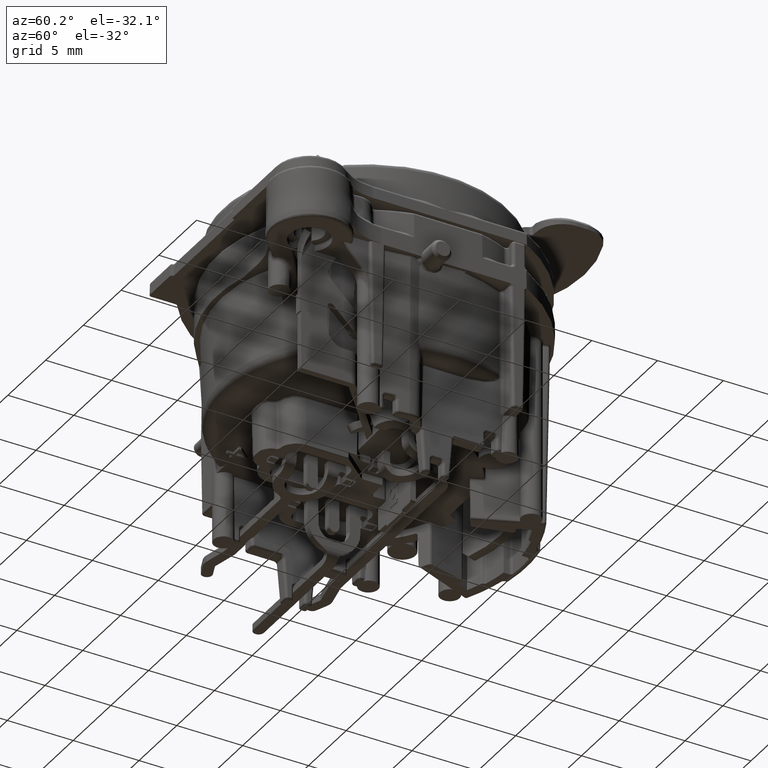
[diagram: clean part render]
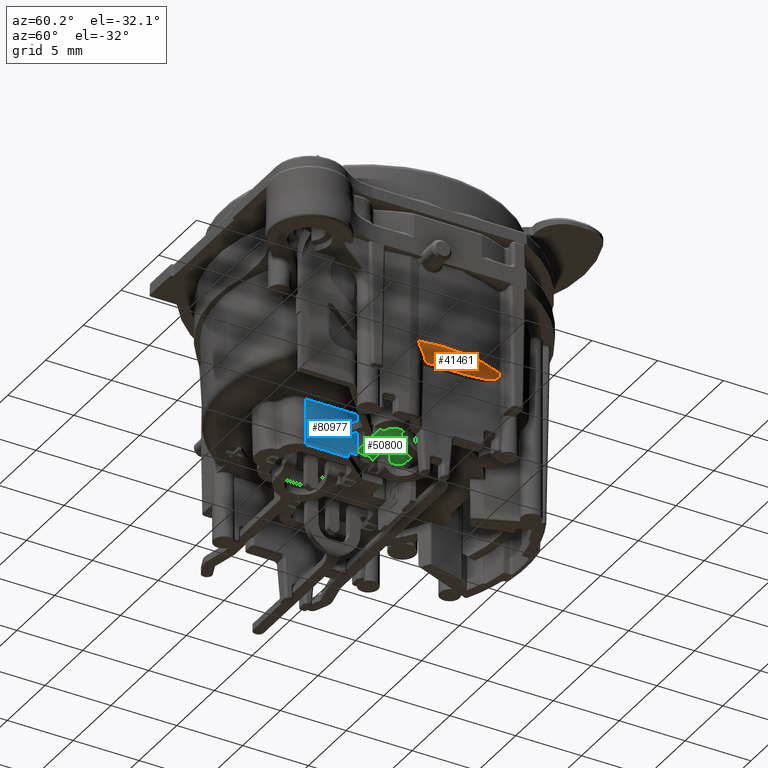
[diagram: same view with three faces highlighted in distinct colors, each labeled with its STEP entity id]
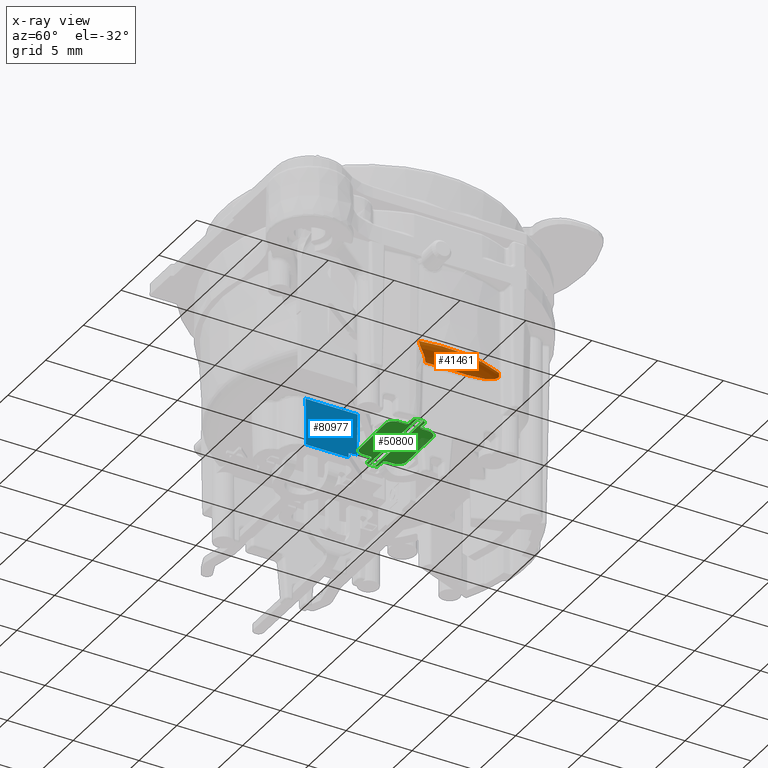
[diagram: x-ray of the same camera — body ghosted, the three highlighted faces saturated]
A machine part, auxiliary view with three faces highlighted in distinct colors.
The next image is the same camera in x-ray (body ghosted, the three faces saturated) — at least one of them is partly hidden behind the body in this view.
Their STEP definitions:

[orange] entity #41461 — the highlighted toroidal blend (fillet) surface has major radius 9.789 mm and minor (blend) radius 1 mm.
#1419=CARTESIAN_POINT('',(9.776065224672E0,4.563753741489E0,-6.367419845091E0));
#1420=CARTESIAN_POINT('',(9.774510955871E0,4.564908061056E0,-6.420035073131E0));
#1421=CARTESIAN_POINT('',(9.761981591803E0,4.567826948001E0,-6.524699402491E0));
#1422=CARTESIAN_POINT('',(9.731067829997E0,4.571888222462E0,-6.626086985737E0));
#1423=CARTESIAN_POINT('',(9.711298770870E0,4.574191011869E0,-6.675241345938E0));
#1425=CARTESIAN_POINT('',(9.845251962257E0,-1.089848148082E0,
-7.343204649385E0));
#1426=CARTESIAN_POINT('',(9.847123040133E0,-9.850765102411E-1,
-7.344337592918E0));
#1427=CARTESIAN_POINT('',(9.850735897948E0,-7.547735208790E-1,
-7.346210658427E0));
#1428=CARTESIAN_POINT('',(9.854663257832E0,-3.385945072399E-1,
-7.347698881238E0));
#1429=CARTESIAN_POINT('',(9.855594221395E0,1.246325651005E-1,
-7.347977383416E0));
#1430=CARTESIAN_POINT('',(9.852569598166E0,6.213142680680E-1,
-7.346995079945E0));
#1431=CARTESIAN_POINT('',(9.845124869789E0,1.135396497814E0,-7.343548791065E0));
#1432=CARTESIAN_POINT('',(9.833424784278E0,1.651474354900E0,-7.334940728037E0));
#1433=CARTESIAN_POINT('',(9.818516322878E0,2.145293455909E0,-7.317598215028E0));
#1434=CARTESIAN_POINT('',(9.802580298384E0,2.583154685398E0,-7.289947117297E0));
#1435=CARTESIAN_POINT('',(9.787140087453E0,2.959613828399E0,-7.252703857355E0));
#1436=CARTESIAN_POINT('',(9.772317101691E0,3.293212086755E0,-7.205094445514E0));
#1437=CARTESIAN_POINT('',(9.758390979788E0,3.589958701238E0,-7.146540259311E0));
#1438=CARTESIAN_POINT('',(9.745647631036E0,3.852548843266E0,-7.076950702022E0));
#1439=CARTESIAN_POINT('',(9.734186772814E0,4.085150085570E0,-6.995093475869E0));
#1440=CARTESIAN_POINT('',(9.724359881959E0,4.285694979276E0,-6.900962119275E0));
#1441=CARTESIAN_POINT('',(9.716456453029E0,4.452034215584E0,-6.794740427157E0));
#1442=CARTESIAN_POINT('',(9.712746483254E0,4.537902500123E0,-6.716396157488E0));
#1443=CARTESIAN_POINT('',(9.711298770870E0,4.574191011869E0,-6.675241345938E0));
#1445=CARTESIAN_POINT('',(9.984148520223E0,-1.174994108943E0,
-7.314510510761E0));
#1446=CARTESIAN_POINT('',(9.961532195861E0,-1.161206496951E0,
-7.321100769580E0));
#1447=CARTESIAN_POINT('',(9.915695032065E0,-1.133187283437E0,
-7.332511750925E0));
#1448=CARTESIAN_POINT('',(9.868862590408E0,-1.104400962097E0,
-7.340267358105E0));
#1449=CARTESIAN_POINT('',(9.845251962257E0,-1.089848148082E0,
-7.343204649385E0));
#1451=CARTESIAN_POINT('',(1.060174216054E1,-2.000617027575E0,
-6.367457787717E0));
#1452=CARTESIAN_POINT('',(1.060096672240E1,-2.000709202815E0,
-6.410146617860E0));
#1453=CARTESIAN_POINT('',(1.059608404158E1,-1.988703584094E0,
-6.497573990917E0));
#1454=CARTESIAN_POINT('',(1.057692420749E1,-1.932954769476E0,
-6.631316412931E0));
#1455=CARTESIAN_POINT('',(1.054220369102E1,-1.841738513343E0,
-6.767846155161E0));
#1456=CARTESIAN_POINT('',(1.048667363937E1,-1.721685519628E0,
-6.903029885869E0));
#1457=CARTESIAN_POINT('',(1.041451385952E1,-1.597253739848E0,
-7.019671814744E0));
#1458=CARTESIAN_POINT('',(1.033381923900E1,-1.484730301264E0,
-7.112796401194E0));
#1459=CARTESIAN_POINT('',(1.024877061495E1,-1.386932758064E0,
-7.185881442471E0));
#1460=CARTESIAN_POINT('',(1.016066421421E1,-1.302668328960E0,
-7.242848589484E0));
#1461=CARTESIAN_POINT('',(1.007227382488E1,-1.232068075732E0,
-7.285475498918E0));
#1462=CARTESIAN_POINT('',(1.001324495085E1,-1.192730352370E0,
-7.306032787875E0));
#1463=CARTESIAN_POINT('',(9.984148520223E0,-1.174994108943E0,
-7.314510510761E0));
#1465=CARTESIAN_POINT('',(0.E0,0.E0,-6.367452406437E0));
#1466=DIRECTION('',(0.E0,0.E0,1.E0));
#1467=DIRECTION('',(9.826567780826E-1,-1.854336983621E-1,0.E0));
#1468=AXIS2_PLACEMENT_3D('',#1465,#1466,#1467);
#35590=VERTEX_POINT('',#1419);
#35591=VERTEX_POINT('',#1423);
#35606=VERTEX_POINT('',#1425);
#35610=VERTEX_POINT('',#1445);
#35612=VERTEX_POINT('',#1451);
#41445=CARTESIAN_POINT('',(0.E0,0.E0,-6.35E0));
#41446=DIRECTION('',(0.E0,0.E0,1.E0));
#41447=DIRECTION('',(-5.442743601056E-1,8.389072779108E-1,0.E0));
#41448=AXIS2_PLACEMENT_3D('',#41445,#41446,#41447);
#41449=TOROIDAL_SURFACE('',#41448,9.789008009662E0,1.E0);
#41451=ORIENTED_EDGE('',*,*,#41450,.T.);
#41453=ORIENTED_EDGE('',*,*,#41452,.F.);
#41455=ORIENTED_EDGE('',*,*,#41454,.F.);
#41456=ORIENTED_EDGE('',*,*,#41438,.F.);
#41458=ORIENTED_EDGE('',*,*,#41457,.T.);
#41459=EDGE_LOOP('',(#41451,#41453,#41455,#41456,#41458));
#41460=FACE_OUTER_BOUND('',#41459,.F.);
#1424=B_SPLINE_CURVE_WITH_KNOTS('',3,(#1419,#1420,#1421,#1422,#1423),
.UNSPECIFIED.,.F.,.F.,(4,1,4),(0.E0,5.E-1,1.E0),.UNSPECIFIED.);
#1444=B_SPLINE_CURVE_WITH_KNOTS('',3,(#1425,#1426,#1427,#1428,#1429,#1430,#1431,
#1432,#1433,#1434,#1435,#1436,#1437,#1438,#1439,#1440,#1441,#1442,#1443),
.UNSPECIFIED.,.F.,.F.,(4,1,1,1,1,1,1,1,1,1,1,1,1,1,1,1,4),(0.E0,6.25E-2,1.25E-1,
1.875E-1,2.5E-1,3.125E-1,3.75E-1,4.375E-1,5.E-1,5.625E-1,6.25E-1,6.875E-1,
7.5E-1,8.125E-1,8.75E-1,9.375E-1,1.E0),.UNSPECIFIED.);
#1450=B_SPLINE_CURVE_WITH_KNOTS('',3,(#1445,#1446,#1447,#1448,#1449),
.UNSPECIFIED.,.F.,.F.,(4,1,4),(0.E0,5.E-1,1.E0),.UNSPECIFIED.);
#1464=B_SPLINE_CURVE_WITH_KNOTS('',3,(#1451,#1452,#1453,#1454,#1455,#1456,#1457,
#1458,#1459,#1460,#1461,#1462,#1463),.UNSPECIFIED.,.F.,.F.,(4,1,1,1,1,1,1,1,1,1,
4),(0.E0,1.E-1,2.E-1,3.E-1,4.E-1,5.E-1,6.E-1,7.E-1,8.E-1,9.E-1,1.E0),
.UNSPECIFIED.);
#1469=CIRCLE('',#1468,1.078885570482E1);
#41438=EDGE_CURVE('',#35612,#35610,#1464,.T.);
#41450=EDGE_CURVE('',#35590,#35591,#1424,.T.);
#41452=EDGE_CURVE('',#35606,#35591,#1444,.T.);
#41454=EDGE_CURVE('',#35610,#35606,#1450,.T.);
#41457=EDGE_CURVE('',#35612,#35590,#1469,.T.);
#41461=ADVANCED_FACE('',(#41460),#41449,.T.);

[blue] entity #80977 — the highlighted planar face has unit normal (-0.9998, 0, 0.0175).
#28956=DIRECTION('',(-1.744973283589E-2,1.743285918601E-2,-9.996957548397E-1));
#28957=VECTOR('',#28956,3.506302488273E0);
#28958=CARTESIAN_POINT('',(2.296565188823E0,-5.846708668417E0,
-7.546509446811E0));
#28959=LINE('',#28958,#28957);
#28960=CARTESIAN_POINT('',(2.235381147161E0,-5.785583790876E0,
-1.105174515952E1));
#28971=DIRECTION('',(1.196047791163E-6,9.999999999993E-1,-1.820150147743E-8));
#28972=VECTOR('',#28971,3.950317627859E0);
#28973=CARTESIAN_POINT('',(2.296565188823E0,-5.846708668417E0,
-7.546509446811E0));
#28974=LINE('',#28973,#28972);
#28975=DIRECTION('',(-1.745195043442E-2,-7.228834559801E-3,-9.998215707700E-1));
#28976=VECTOR('',#28975,3.104044333528E0);
#28977=CARTESIAN_POINT('',(2.296569913592E0,-1.896391040562E0,
-7.546509518713E0));
#28978=LINE('',#28977,#28976);
#28979=DIRECTION('',(0.E0,-1.E0,0.E0));
#28980=VECTOR('',#28979,6.355702771929E-1);
#28981=CARTESIAN_POINT('',(2.242398285737E0,-1.918829663515E0,-1.065E1));
#28982=LINE('',#28981,#28980);
#28983=DIRECTION('',(-1.744889019666E-2,2.007265202331E-2,-9.996462498662E-1));
#28984=VECTOR('',#28983,4.018874083682E-1);
#28985=CARTESIAN_POINT('',(2.242398285737E0,-2.554399940708E0,-1.065E1));
#28986=LINE('',#28985,#28984);
#28987=DIRECTION('',(-1.435305919609E-6,-9.999999999990E-1,2.504353732214E-8));
#28988=VECTOR('',#28987,3.239250796272E0);
#28989=CARTESIAN_POINT('',(2.235385796477E0,-2.546332994607E0,
-1.105174524064E1));
#28990=LINE('',#28989,#28988);
#29948=CARTESIAN_POINT('',(2.235385796477E0,-2.546332994607E0,
-1.105174524064E1));
#34252=CARTESIAN_POINT('',(2.242398285737E0,-1.918829663515E0,-1.065E1));
#34254=VERTEX_POINT('',#34252);
#34258=CARTESIAN_POINT('',(2.242398285737E0,-2.554399940708E0,-1.065E1));
#34259=VERTEX_POINT('',#34258);
#34501=VERTEX_POINT('',#28960);
#34502=VERTEX_POINT('',#29948);
#34613=CARTESIAN_POINT('',(2.296565188823E0,-5.846708668417E0,
-7.546509446811E0));
#34614=CARTESIAN_POINT('',(2.296569913592E0,-1.896391040562E0,
-7.546509518713E0));
#34615=VERTEX_POINT('',#34613);
#34616=VERTEX_POINT('',#34614);
#80960=CARTESIAN_POINT('',(2.3E0,-7.874952411393E0,-7.35E0));
#80961=DIRECTION('',(-9.998476951564E-1,0.E0,1.745240643728E-2));
#80962=DIRECTION('',(0.E0,1.E0,0.E0));
#80963=AXIS2_PLACEMENT_3D('',#80960,#80961,#80962);
#80964=PLANE('',#80963);
#80966=ORIENTED_EDGE('',*,*,#80965,.T.);
#80968=ORIENTED_EDGE('',*,*,#80967,.T.);
#80969=ORIENTED_EDGE('',*,*,#49945,.T.);
#80971=ORIENTED_EDGE('',*,*,#80970,.T.);
#80973=ORIENTED_EDGE('',*,*,#80972,.T.);
#80974=ORIENTED_EDGE('',*,*,#80952,.F.);
#80975=EDGE_LOOP('',(#80966,#80968,#80969,#80971,#80973,#80974));
#80976=FACE_OUTER_BOUND('',#80975,.F.);
#49945=EDGE_CURVE('',#34254,#34259,#28982,.T.);
#80952=EDGE_CURVE('',#34615,#34501,#28959,.T.);
#80965=EDGE_CURVE('',#34615,#34616,#28974,.T.);
#80967=EDGE_CURVE('',#34616,#34254,#28978,.T.);
#80970=EDGE_CURVE('',#34259,#34502,#28986,.T.);
#80972=EDGE_CURVE('',#34502,#34501,#28990,.T.);
#80977=ADVANCED_FACE('',(#80976),#80964,.F.);

[green] entity #50800 — the highlighted planar face has unit normal (0, 0, -1).
#9480=DIRECTION('',(-9.997939607324E-1,2.029867195376E-2,0.E0));
#9481=VECTOR('',#9480,3.424966527574E0);
#9482=CARTESIAN_POINT('',(5.475876027565E0,-1.783991973106E0,-1.01E1));
#9483=LINE('',#9482,#9481);
#29003=DIRECTION('',(-7.071067811866E-1,7.071067811865E-1,-1.089646449376E-13));
#29004=VECTOR('',#29003,1.630213947302E-2);
#29005=CARTESIAN_POINT('',(2.051615177586E0,-1.714469701110E0,-1.01E1));
#29006=LINE('',#29005,#29004);
#29019=CARTESIAN_POINT('',(2.347826303092E0,-1.152173696908E0,
-1.010011713351E1));
#29020=DIRECTION('',(-1.388709535229E-4,-1.388709535229E-4,-9.999999807149E-1));
#29021=DIRECTION('',(-4.877682006195E-1,-8.729731649689E-1,1.889674545820E-4));
#29022=AXIS2_PLACEMENT_3D('',#29019,#29020,#29021);
#29087=DIRECTION('',(0.E0,1.E0,0.E0));
#29088=VECTOR('',#29087,5.166243349062E-1);
#29089=CARTESIAN_POINT('',(1.716915266191E0,-1.152174445247E0,-1.01E1));
#29090=LINE('',#29089,#29088);
#29103=DIRECTION('',(0.E0,1.E0,0.E0));
#29104=VECTOR('',#29103,5.166243349062E-1);
#29105=CARTESIAN_POINT('',(1.716915266191E0,6.355501103410E-1,-1.01E1));
#29106=LINE('',#29105,#29104);
#29119=CARTESIAN_POINT('',(1.516953339067E0,-4.355272543177E-1,-1.01E1));
#29120=CARTESIAN_POINT('',(1.583617469592E0,-4.355272543177E-1,-1.01E1));
#29121=CARTESIAN_POINT('',(1.666447338075E0,-4.860256468839E-1,-1.01E1));
#29122=CARTESIAN_POINT('',(1.716915266191E0,-5.688859798165E-1,-1.01E1));
#29123=CARTESIAN_POINT('',(1.716915266191E0,-6.355501103410E-1,-1.01E1));
#29125=DIRECTION('',(-1.E0,0.E0,0.E0));
#29126=VECTOR('',#29125,5.010516341349E-1);
#29127=CARTESIAN_POINT('',(7.084098295068E0,-4.355272543177E-1,-1.01E1));
#29128=LINE('',#29127,#29126);
#29137=DIRECTION('',(-1.E0,0.E0,0.E0));
#29138=VECTOR('',#29137,5.010516341349E-1);
#29139=CARTESIAN_POINT('',(1.516953339067E0,-4.355272543177E-1,-1.01E1));
#29140=LINE('',#29139,#29138);
#29149=CARTESIAN_POINT('',(6.583046660933E0,-4.355272543177E-1,-1.01E1));
#29150=CARTESIAN_POINT('',(6.516382530408E0,-4.355272543177E-1,-1.01E1));
#29151=CARTESIAN_POINT('',(6.433552661925E0,-4.860256468839E-1,-1.01E1));
#29152=CARTESIAN_POINT('',(6.383084733809E0,-5.688859798165E-1,-1.01E1));
#29153=CARTESIAN_POINT('',(6.383084733809E0,-6.355501103410E-1,-1.01E1));
#29155=DIRECTION('',(0.E0,-1.E0,0.E0));
#29156=VECTOR('',#29155,5.166243349062E-1);
#29157=CARTESIAN_POINT('',(6.383084733809E0,1.152174445247E0,-1.01E1));
#29158=LINE('',#29157,#29156);
#29167=DIRECTION('',(0.E0,-1.E0,0.E0));
#29168=VECTOR('',#29167,5.166243349062E-1);
#29169=CARTESIAN_POINT('',(6.383084733809E0,-6.355501103410E-1,-1.01E1));
#29170=LINE('',#29169,#29168);
#29179=CARTESIAN_POINT('',(6.583046660933E0,4.355272543177E-1,-1.01E1));
#29180=CARTESIAN_POINT('',(6.516382530408E0,4.355272543177E-1,-1.01E1));
#29181=CARTESIAN_POINT('',(6.433552661925E0,4.860256468839E-1,-1.01E1));
#29182=CARTESIAN_POINT('',(6.383084733809E0,5.688859798165E-1,-1.01E1));
#29183=CARTESIAN_POINT('',(6.383084733809E0,6.355501103410E-1,-1.01E1));
#29185=DIRECTION('',(1.E0,0.E0,0.E0));
#29186=VECTOR('',#29185,5.010516341349E-1);
#29187=CARTESIAN_POINT('',(1.015901704932E0,4.355272543177E-1,-1.01E1));
#29188=LINE('',#29187,#29186);
#29197=DIRECTION('',(1.E0,0.E0,0.E0));
#29198=VECTOR('',#29197,5.010516341349E-1);
#29199=CARTESIAN_POINT('',(6.583046660933E0,4.355272543177E-1,-1.01E1));
#29200=LINE('',#29199,#29198);
#29209=CARTESIAN_POINT('',(1.516953339067E0,4.355272543177E-1,-1.01E1));
#29210=CARTESIAN_POINT('',(1.583617469592E0,4.355272543177E-1,-1.01E1));
#29211=CARTESIAN_POINT('',(1.666447338075E0,4.860256468839E-1,-1.01E1));
#29212=CARTESIAN_POINT('',(1.716915266191E0,5.688859798165E-1,-1.01E1));
#29213=CARTESIAN_POINT('',(1.716915266191E0,6.355501103410E-1,-1.01E1));
#29215=CARTESIAN_POINT('',(1.015901704932E0,4.355272543177E-1,-1.01E1));
#29216=CARTESIAN_POINT('',(9.492489985037E-1,4.355272543177E-1,-1.01E1));
#29217=CARTESIAN_POINT('',(8.664220728988E-1,3.850487670655E-1,-1.01E1));
#29218=CARTESIAN_POINT('',(8.159626233900E-1,3.022028037173E-1,-1.01E1));
#29219=CARTESIAN_POINT('',(8.159626233900E-1,2.355500972887E-1,-1.01E1));
#29227=DIRECTION('',(0.E0,1.E0,0.E0));
#29228=VECTOR('',#29227,4.711001945775E-1);
#29229=CARTESIAN_POINT('',(8.159626233900E-1,-2.355500972887E-1,-1.01E1));
#29230=LINE('',#29229,#29228);
#29243=CARTESIAN_POINT('',(8.159626233900E-1,-2.355500972887E-1,-1.01E1));
#29244=CARTESIAN_POINT('',(8.159626233900E-1,-3.022028037173E-1,-1.01E1));
#29245=CARTESIAN_POINT('',(8.664220728988E-1,-3.850487670655E-1,-1.01E1));
#29246=CARTESIAN_POINT('',(9.492489985037E-1,-4.355272543177E-1,-1.01E1));
#29247=CARTESIAN_POINT('',(1.015901704932E0,-4.355272543177E-1,-1.01E1));
#29255=CARTESIAN_POINT('',(7.284037376610E0,2.355500972887E-1,-1.01E1));
#29256=CARTESIAN_POINT('',(7.284037376610E0,3.022028037173E-1,-1.01E1));
#29257=CARTESIAN_POINT('',(7.233577927101E0,3.850487670655E-1,-1.01E1));
#29258=CARTESIAN_POINT('',(7.150751001496E0,4.355272543177E-1,-1.01E1));
#29259=CARTESIAN_POINT('',(7.084098295068E0,4.355272543177E-1,-1.01E1));
#29267=DIRECTION('',(0.E0,-1.E0,0.E0));
#29268=VECTOR('',#29267,4.711001945775E-1);
#29269=CARTESIAN_POINT('',(7.284037376610E0,2.355500972887E-1,-1.01E1));
#29270=LINE('',#29269,#29268);
#29283=CARTESIAN_POINT('',(7.084098295068E0,-4.355272543177E-1,-1.01E1));
#29284=CARTESIAN_POINT('',(7.150751001496E0,-4.355272543177E-1,-1.01E1));
#29285=CARTESIAN_POINT('',(7.233577927101E0,-3.850487670655E-1,-1.01E1));
#29286=CARTESIAN_POINT('',(7.284037376610E0,-3.022028037173E-1,-1.01E1));
#29287=CARTESIAN_POINT('',(7.284037376610E0,-2.355500972887E-1,-1.01E1));
#29295=CARTESIAN_POINT('',(5.752173696805E0,1.152173696805E0,
-1.010011639144E1));
#29296=DIRECTION('',(1.388709535229E-4,1.388709535229E-4,-9.999999807149E-1));
#29297=DIRECTION('',(1.192621851560E-6,9.999999903567E-1,1.388711204811E-4));
#29298=AXIS2_PLACEMENT_3D('',#29295,#29296,#29297);
#29308=DIRECTION('',(1.E0,0.E0,0.E0));
#29309=VECTOR('',#29308,3.404348890495E0);
#29310=CARTESIAN_POINT('',(2.347825554753E0,1.783084733809E0,-1.01E1));
#29311=LINE('',#29310,#29309);
#29320=CARTESIAN_POINT('',(2.347826303195E0,1.152173696805E0,
-1.010011639144E1));
#29321=DIRECTION('',(-1.388709535229E-4,1.388709535229E-4,-9.999999807149E-1));
#29322=DIRECTION('',(-9.999999903567E-1,1.192621850152E-6,1.388711204811E-4));
#29323=AXIS2_PLACEMENT_3D('',#29320,#29321,#29322);
#29325=CARTESIAN_POINT('',(5.752173696805E0,-1.152173696805E0,
-1.010011639144E1));
#29326=DIRECTION('',(1.388709535229E-4,-1.388709535229E-4,-9.999999807149E-1));
#29327=DIRECTION('',(9.999999903567E-1,-1.192621861414E-6,1.388711204811E-4));
#29328=AXIS2_PLACEMENT_3D('',#29325,#29326,#29327);
#29338=DIRECTION('',(-9.999946091977E-1,-3.283530950119E-3,0.E0));
#29339=VECTOR('',#29338,2.762999071601E-1);
#29340=CARTESIAN_POINT('',(5.752174445247E0,-1.783084733809E0,-1.01E1));
#29341=LINE('',#29340,#29339);
#30917=DIRECTION('',(-1.E0,0.E0,0.E0));
#30918=VECTOR('',#30917,1.974110761516E0);
#30919=CARTESIAN_POINT('',(7.224110761516E0,2.5E-1,-1.01E1));
#30920=LINE('',#30919,#30918);
#30959=DIRECTION('',(-1.E0,0.E0,0.E0));
#30960=VECTOR('',#30959,1.974110761516E0);
#30961=CARTESIAN_POINT('',(2.85E0,2.5E-1,-1.01E1));
#30962=LINE('',#30961,#30960);
#31001=DIRECTION('',(0.E0,1.E0,0.E0));
#31002=VECTOR('',#31001,5.E-1);
#31003=CARTESIAN_POINT('',(5.25E0,-2.5E-1,-1.01E1));
#31004=LINE('',#31003,#31002);
#31009=DIRECTION('',(-1.E0,0.E0,0.E0));
#31010=VECTOR('',#31009,1.974110761516E0);
#31011=CARTESIAN_POINT('',(7.224110761516E0,-2.5E-1,-1.01E1));
#31012=LINE('',#31011,#31010);
#31051=DIRECTION('',(-1.E0,0.E0,0.E0));
#31052=VECTOR('',#31051,1.974110761516E0);
#31053=CARTESIAN_POINT('',(2.85E0,-2.5E-1,-1.01E1));
#31054=LINE('',#31053,#31052);
#31093=DIRECTION('',(0.E0,1.E0,0.E0));
#31094=VECTOR('',#31093,5.E-1);
#31095=CARTESIAN_POINT('',(7.224110761516E0,-2.5E-1,-1.01E1));
#31096=LINE('',#31095,#31094);
#31493=DIRECTION('',(0.E0,1.E0,0.E0));
#31494=VECTOR('',#31493,5.E-1);
#31495=CARTESIAN_POINT('',(2.85E0,-2.5E-1,-1.01E1));
#31496=LINE('',#31495,#31494);
#31537=DIRECTION('',(0.E0,1.E0,0.E0));
#31538=VECTOR('',#31537,5.E-1);
#31539=CARTESIAN_POINT('',(8.758892384840E-1,-2.5E-1,-1.01E1));
#31540=LINE('',#31539,#31538);
#39472=CARTESIAN_POINT('',(5.475876027565E0,-1.783991973106E0,-1.01E1));
#39474=VERTEX_POINT('',#39472);
#39493=CARTESIAN_POINT('',(6.383084733809E0,1.152174445247E0,-1.01E1));
#39494=CARTESIAN_POINT('',(6.383084733809E0,6.355501103410E-1,-1.01E1));
#39495=VERTEX_POINT('',#39493);
#39496=VERTEX_POINT('',#39494);
#39497=CARTESIAN_POINT('',(6.383084733809E0,-6.355501103410E-1,-1.01E1));
#39498=CARTESIAN_POINT('',(6.383084733809E0,-1.152174445247E0,-1.01E1));
#39499=VERTEX_POINT('',#39497);
#39500=VERTEX_POINT('',#39498);
#39505=CARTESIAN_POINT('',(5.752174445247E0,-1.783084733809E0,-1.01E1));
#39506=VERTEX_POINT('',#39505);
#39511=CARTESIAN_POINT('',(2.347825554753E0,1.783084733809E0,-1.01E1));
#39512=CARTESIAN_POINT('',(5.752174445247E0,1.783084733809E0,-1.01E1));
#39513=VERTEX_POINT('',#39511);
#39514=VERTEX_POINT('',#39512);
#39551=CARTESIAN_POINT('',(1.716915266191E0,-1.152174445247E0,-1.01E1));
#39552=CARTESIAN_POINT('',(1.716915266191E0,-6.355501103410E-1,-1.01E1));
#39553=VERTEX_POINT('',#39551);
#39554=VERTEX_POINT('',#39552);
#39555=CARTESIAN_POINT('',(1.716915266191E0,6.355501103410E-1,-1.01E1));
#39556=CARTESIAN_POINT('',(1.716915266191E0,1.152174445247E0,-1.01E1));
#39557=VERTEX_POINT('',#39555);
#39558=VERTEX_POINT('',#39556);
#39559=CARTESIAN_POINT('',(2.040087833255E0,-1.702942331795E0,
-1.009999791181E1));
#39560=VERTEX_POINT('',#39559);
#39609=CARTESIAN_POINT('',(8.159626233900E-1,-2.355500972887E-1,-1.01E1));
#39610=CARTESIAN_POINT('',(8.159626233900E-1,2.355500972887E-1,-1.01E1));
#39611=VERTEX_POINT('',#39609);
#39612=VERTEX_POINT('',#39610);
#39613=CARTESIAN_POINT('',(7.284037376610E0,2.355500972887E-1,-1.01E1));
#39614=CARTESIAN_POINT('',(7.284037376610E0,-2.355500972887E-1,-1.01E1));
#39615=VERTEX_POINT('',#39613);
#39616=VERTEX_POINT('',#39614);
#39617=CARTESIAN_POINT('',(1.015901704932E0,4.355272543177E-1,-1.01E1));
#39618=CARTESIAN_POINT('',(1.516953339067E0,4.355272543177E-1,-1.01E1));
#39619=VERTEX_POINT('',#39617);
#39620=VERTEX_POINT('',#39618);
#39621=CARTESIAN_POINT('',(6.583046660933E0,4.355272543177E-1,-1.01E1));
#39622=CARTESIAN_POINT('',(7.084098295068E0,4.355272543177E-1,-1.01E1));
#39623=VERTEX_POINT('',#39621);
#39624=VERTEX_POINT('',#39622);
#39625=CARTESIAN_POINT('',(7.084098295068E0,-4.355272543177E-1,-1.01E1));
#39626=CARTESIAN_POINT('',(6.583046660933E0,-4.355272543177E-1,-1.01E1));
#39627=VERTEX_POINT('',#39625);
#39628=VERTEX_POINT('',#39626);
#39629=CARTESIAN_POINT('',(1.516953339067E0,-4.355272543177E-1,-1.01E1));
#39630=CARTESIAN_POINT('',(1.015901704932E0,-4.355272543177E-1,-1.01E1));
#39631=VERTEX_POINT('',#39629);
#39632=VERTEX_POINT('',#39630);
#39633=CARTESIAN_POINT('',(2.051615177586E0,-1.714469701110E0,-1.01E1));
#39634=VERTEX_POINT('',#39633);
#39673=CARTESIAN_POINT('',(7.224110761516E0,2.5E-1,-1.01E1));
#39674=CARTESIAN_POINT('',(5.25E0,2.5E-1,-1.01E1));
#39675=VERTEX_POINT('',#39673);
#39676=VERTEX_POINT('',#39674);
#39677=CARTESIAN_POINT('',(2.85E0,2.5E-1,-1.01E1));
#39678=CARTESIAN_POINT('',(8.758892384840E-1,2.5E-1,-1.01E1));
#39679=VERTEX_POINT('',#39677);
#39680=VERTEX_POINT('',#39678);
#39681=CARTESIAN_POINT('',(7.224110761516E0,-2.5E-1,-1.01E1));
#39682=CARTESIAN_POINT('',(5.25E0,-2.5E-1,-1.01E1));
#39683=VERTEX_POINT('',#39681);
#39684=VERTEX_POINT('',#39682);
#39685=CARTESIAN_POINT('',(2.85E0,-2.5E-1,-1.01E1));
#39686=CARTESIAN_POINT('',(8.758892384840E-1,-2.5E-1,-1.01E1));
#39687=VERTEX_POINT('',#39685);
#39688=VERTEX_POINT('',#39686);
#50722=CARTESIAN_POINT('',(0.E0,0.E0,-1.01E1));
#50723=DIRECTION('',(0.E0,0.E0,-1.E0));
#50724=DIRECTION('',(-1.E0,0.E0,0.E0));
#50725=AXIS2_PLACEMENT_3D('',#50722,#50723,#50724);
#50726=PLANE('',#50725);
#50728=ORIENTED_EDGE('',*,*,#50727,.F.);
#50730=ORIENTED_EDGE('',*,*,#50729,.F.);
#50732=ORIENTED_EDGE('',*,*,#50731,.F.);
#50734=ORIENTED_EDGE('',*,*,#50733,.F.);
#50736=ORIENTED_EDGE('',*,*,#50735,.F.);
#50738=ORIENTED_EDGE('',*,*,#50737,.F.);
#50740=ORIENTED_EDGE('',*,*,#50739,.F.);
#50742=ORIENTED_EDGE('',*,*,#50741,.T.);
#50744=ORIENTED_EDGE('',*,*,#50743,.F.);
#50746=ORIENTED_EDGE('',*,*,#50745,.T.);
#50748=ORIENTED_EDGE('',*,*,#50747,.F.);
#50750=ORIENTED_EDGE('',*,*,#50749,.T.);
#50752=ORIENTED_EDGE('',*,*,#50751,.F.);
#50754=ORIENTED_EDGE('',*,*,#50753,.F.);
#50756=ORIENTED_EDGE('',*,*,#50755,.F.);
#50757=ORIENTED_EDGE('',*,*,#48862,.F.);
#50759=ORIENTED_EDGE('',*,*,#50758,.F.);
#50761=ORIENTED_EDGE('',*,*,#50760,.F.);
#50763=ORIENTED_EDGE('',*,*,#50762,.F.);
#50765=ORIENTED_EDGE('',*,*,#50764,.F.);
#50767=ORIENTED_EDGE('',*,*,#50766,.F.);
#50769=ORIENTED_EDGE('',*,*,#50768,.T.);
#50771=ORIENTED_EDGE('',*,*,#50770,.F.);
#50773=ORIENTED_EDGE('',*,*,#50772,.T.);
#50775=ORIENTED_EDGE('',*,*,#50774,.F.);
#50777=ORIENTED_EDGE('',*,*,#50776,.T.);
#50778=EDGE_LOOP('',(#50728,#50730,#50732,#50734,#50736,#50738,#50740,#50742,
#50744,#50746,#50748,#50750,#50752,#50754,#50756,#50757,#50759,#50761,#50763,
#50765,#50767,#50769,#50771,#50773,#50775,#50777));
#50779=FACE_OUTER_BOUND('',#50778,.F.);
#50781=ORIENTED_EDGE('',*,*,#50780,.F.);
#50783=ORIENTED_EDGE('',*,*,#50782,.F.);
#50785=ORIENTED_EDGE('',*,*,#50784,.T.);
#50787=ORIENTED_EDGE('',*,*,#50786,.T.);
#50788=EDGE_LOOP('',(#50781,#50783,#50785,#50787));
#50789=FACE_BOUND('',#50788,.F.);
#50791=ORIENTED_EDGE('',*,*,#50790,.F.);
#50793=ORIENTED_EDGE('',*,*,#50792,.F.);
#50795=ORIENTED_EDGE('',*,*,#50794,.T.);
#50797=ORIENTED_EDGE('',*,*,#50796,.T.);
#50798=EDGE_LOOP('',(#50791,#50793,#50795,#50797));
#50799=FACE_BOUND('',#50798,.F.);
#29023=CIRCLE('',#29022,6.309113005860E-1);
#29124=B_SPLINE_CURVE_WITH_KNOTS('',3,(#29119,#29120,#29121,#29122,#29123),
.UNSPECIFIED.,.F.,.F.,(4,1,4),(0.E0,5.E-1,1.E0),.UNSPECIFIED.);
#29154=B_SPLINE_CURVE_WITH_KNOTS('',3,(#29149,#29150,#29151,#29152,#29153),
.UNSPECIFIED.,.F.,.F.,(4,1,4),(0.E0,5.E-1,1.E0),.UNSPECIFIED.);
#29184=B_SPLINE_CURVE_WITH_KNOTS('',3,(#29179,#29180,#29181,#29182,#29183),
.UNSPECIFIED.,.F.,.F.,(4,1,4),(0.E0,5.E-1,1.E0),.UNSPECIFIED.);
#29214=B_SPLINE_CURVE_WITH_KNOTS('',3,(#29209,#29210,#29211,#29212,#29213),
.UNSPECIFIED.,.F.,.F.,(4,1,4),(0.E0,5.E-1,1.E0),.UNSPECIFIED.);
#29220=B_SPLINE_CURVE_WITH_KNOTS('',3,(#29215,#29216,#29217,#29218,#29219),
.UNSPECIFIED.,.F.,.F.,(4,1,4),(0.E0,5.E-1,1.E0),.UNSPECIFIED.);
#29248=B_SPLINE_CURVE_WITH_KNOTS('',3,(#29243,#29244,#29245,#29246,#29247),
.UNSPECIFIED.,.F.,.F.,(4,1,4),(0.E0,5.E-1,1.E0),.UNSPECIFIED.);
#29260=B_SPLINE_CURVE_WITH_KNOTS('',3,(#29255,#29256,#29257,#29258,#29259),
.UNSPECIFIED.,.F.,.F.,(4,1,4),(0.E0,5.E-1,1.E0),.UNSPECIFIED.);
#29288=B_SPLINE_CURVE_WITH_KNOTS('',3,(#29283,#29284,#29285,#29286,#29287),
.UNSPECIFIED.,.F.,.F.,(4,1,4),(0.E0,5.E-1,1.E0),.UNSPECIFIED.);
#29299=CIRCLE('',#29298,6.309112942131E-1);
#29324=CIRCLE('',#29323,6.309112942131E-1);
#29329=CIRCLE('',#29328,6.309112942131E-1);
#48862=EDGE_CURVE('',#39474,#39634,#9483,.T.);
#50727=EDGE_CURVE('',#39495,#39496,#29158,.T.);
#50729=EDGE_CURVE('',#39514,#39495,#29299,.T.);
#50731=EDGE_CURVE('',#39513,#39514,#29311,.T.);
#50733=EDGE_CURVE('',#39558,#39513,#29324,.T.);
#50735=EDGE_CURVE('',#39557,#39558,#29106,.T.);
#50737=EDGE_CURVE('',#39620,#39557,#29214,.T.);
#50739=EDGE_CURVE('',#39619,#39620,#29188,.T.);
#50741=EDGE_CURVE('',#39619,#39612,#29220,.T.);
#50743=EDGE_CURVE('',#39611,#39612,#29230,.T.);
#50745=EDGE_CURVE('',#39611,#39632,#29248,.T.);
#50747=EDGE_CURVE('',#39631,#39632,#29140,.T.);
#50749=EDGE_CURVE('',#39631,#39554,#29124,.T.);
#50751=EDGE_CURVE('',#39553,#39554,#29090,.T.);
#50753=EDGE_CURVE('',#39560,#39553,#29023,.T.);
#50755=EDGE_CURVE('',#39634,#39560,#29006,.T.);
#50758=EDGE_CURVE('',#39506,#39474,#29341,.T.);
#50760=EDGE_CURVE('',#39500,#39506,#29329,.T.);
#50762=EDGE_CURVE('',#39499,#39500,#29170,.T.);
#50764=EDGE_CURVE('',#39628,#39499,#29154,.T.);
#50766=EDGE_CURVE('',#39627,#39628,#29128,.T.);
#50768=EDGE_CURVE('',#39627,#39616,#29288,.T.);
#50770=EDGE_CURVE('',#39615,#39616,#29270,.T.);
#50772=EDGE_CURVE('',#39615,#39624,#29260,.T.);
#50774=EDGE_CURVE('',#39623,#39624,#29200,.T.);
#50776=EDGE_CURVE('',#39623,#39496,#29184,.T.);
#50780=EDGE_CURVE('',#39675,#39676,#30920,.T.);
#50782=EDGE_CURVE('',#39683,#39675,#31096,.T.);
#50784=EDGE_CURVE('',#39683,#39684,#31012,.T.);
#50786=EDGE_CURVE('',#39684,#39676,#31004,.T.);
#50790=EDGE_CURVE('',#39679,#39680,#30962,.T.);
#50792=EDGE_CURVE('',#39687,#39679,#31496,.T.);
#50794=EDGE_CURVE('',#39687,#39688,#31054,.T.);
#50796=EDGE_CURVE('',#39688,#39680,#31540,.T.);
#50800=ADVANCED_FACE('',(#50779,#50789,#50799),#50726,.T.);